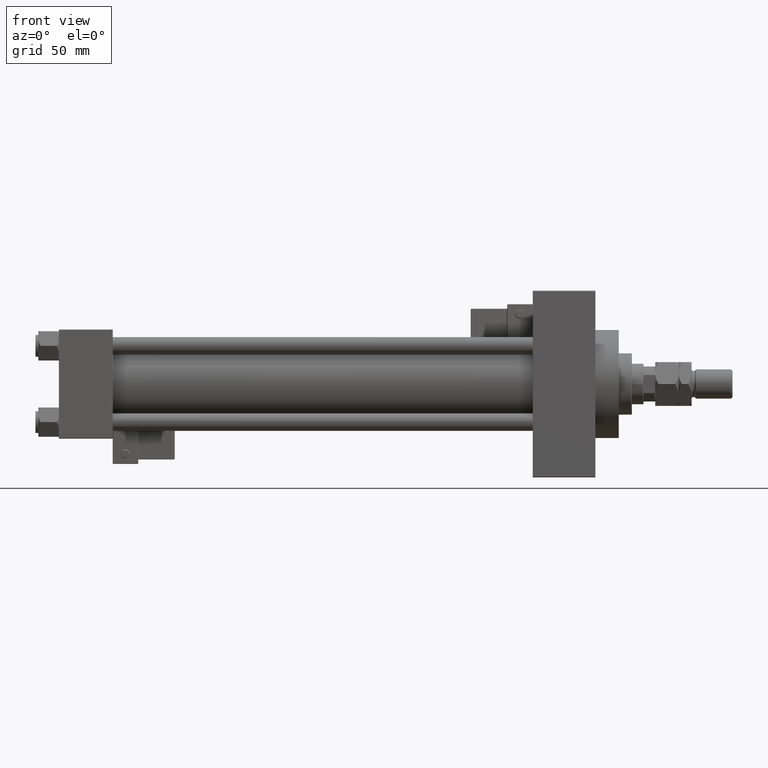
[diagram: clean part render]
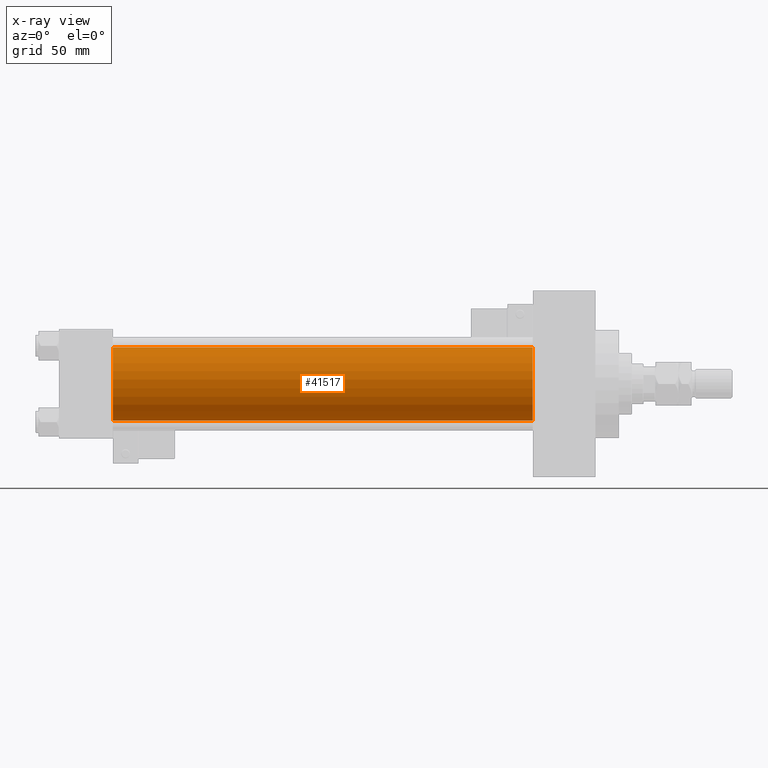
[diagram: x-ray — body ghosted, one internal face saturated and labeled with its STEP entity id]
A machine part, front view, then the same camera in x-ray: the body is ghosted and one INTERNAL B-rep face — a face not visible from any outside direction — is saturated and labeled: STEP entity #41517.
In plain terms, the highlighted cylindrical surface (edge-blend (fillet) strip) has radius 25 mm, axis along (-1, -0, -0).
Its self-contained STEP definition (entity closure, byte-faithful):
#2439 = DIRECTION ( 'NONE',  ( 1.000000000000000000, 0.000000000000000000, 0.000000000000000000 ) ) ;
#2708 = CARTESIAN_POINT ( 'NONE',  ( 37.00000000000000000, -2.602085213965210642E-15, 0.000000000000000000 ) ) ;
#3011 = ORIENTED_EDGE ( 'NONE', *, *, #22082, .F. ) ;
#3514 = AXIS2_PLACEMENT_3D ( 'NONE', #34918, #43232, #35966 ) ;
#5256 = CIRCLE ( 'NONE', #3514, 25.00000000000000000 ) ;
#7277 = CARTESIAN_POINT ( 'NONE',  ( 37.00000000000000000, 4.595317839031724996E-16, -25.00000000000000000 ) ) ;
#7745 = FACE_OUTER_BOUND ( 'NONE', #41945, .T. ) ;
#10598 = VECTOR ( 'NONE', #13436, 1000.000000000000000 ) ;
#11924 = CARTESIAN_POINT ( 'NONE',  ( 324.9999999999999432, 4.595317839031724996E-16, -25.00000000000000000 ) ) ;
#12291 = AXIS2_PLACEMENT_3D ( 'NONE', #2708, #2439, #23629 ) ;
#12650 = VERTEX_POINT ( 'NONE', #12829 ) ;
#12829 = CARTESIAN_POINT ( 'NONE',  ( 37.00000000000000000, -2.602085213965210642E-15, 25.00000000000000000 ) ) ;
#13005 = ORIENTED_EDGE ( 'NONE', *, *, #22814, .T. ) ;
#13436 = DIRECTION ( 'NONE',  ( -1.000000000000000000, -0.000000000000000000, -0.000000000000000000 ) ) ;
#16556 = ORIENTED_EDGE ( 'NONE', *, *, #38289, .T. ) ;
#16852 = CYLINDRICAL_SURFACE ( 'NONE', #23267, 25.00000000000000000 ) ;
#19505 = VECTOR ( 'NONE', #34673, 1000.000000000000000 ) ;
#19994 = CIRCLE ( 'NONE', #12291, 25.00000000000000000 ) ;
#21747 = LINE ( 'NONE', #23274, #10598 ) ;
#22082 = EDGE_CURVE ( 'NONE', #12650, #22137, #19994, .T. ) ;
#22137 = VERTEX_POINT ( 'NONE', #7277 ) ;
#22814 = EDGE_CURVE ( 'NONE', #45264, #22137, #21747, .T. ) ;
#23267 = AXIS2_PLACEMENT_3D ( 'NONE', #24885, #45023, #40989 ) ;
#23274 = CARTESIAN_POINT ( 'NONE',  ( 324.9999999999999432, 4.595317839031724996E-16, -25.00000000000000000 ) ) ;
#23629 = DIRECTION ( 'NONE',  ( 0.000000000000000000, 0.000000000000000000, -1.000000000000000000 ) ) ;
#24885 = CARTESIAN_POINT ( 'NONE',  ( 324.9999999999999432, -2.602085213965210642E-15, 0.000000000000000000 ) ) ;
#25957 = EDGE_CURVE ( 'NONE', #32729, #12650, #33861, .T. ) ;
#26910 = ORIENTED_EDGE ( 'NONE', *, *, #25957, .F. ) ;
#29012 = CARTESIAN_POINT ( 'NONE',  ( 324.9999999999999432, -2.602085213965210642E-15, 25.00000000000000000 ) ) ;
#32729 = VERTEX_POINT ( 'NONE', #29012 ) ;
#33861 = LINE ( 'NONE', #50789, #19505 ) ;
#34673 = DIRECTION ( 'NONE',  ( -1.000000000000000000, -0.000000000000000000, -0.000000000000000000 ) ) ;
#34918 = CARTESIAN_POINT ( 'NONE',  ( 324.9999999999999432, -2.602085213965210642E-15, 0.000000000000000000 ) ) ;
#35966 = DIRECTION ( 'NONE',  ( 0.000000000000000000, 0.000000000000000000, -1.000000000000000000 ) ) ;
#38289 = EDGE_CURVE ( 'NONE', #32729, #45264, #5256, .T. ) ;
#40989 = DIRECTION ( 'NONE',  ( 0.000000000000000000, 0.000000000000000000, 1.000000000000000000 ) ) ;
#41517 = ADVANCED_FACE ( 'NONE', ( #7745 ), #16852, .F. ) ;
#41945 = EDGE_LOOP ( 'NONE', ( #16556, #13005, #3011, #26910 ) ) ;
#43232 = DIRECTION ( 'NONE',  ( 1.000000000000000000, 0.000000000000000000, 0.000000000000000000 ) ) ;
#45023 = DIRECTION ( 'NONE',  ( -1.000000000000000000, -0.000000000000000000, -0.000000000000000000 ) ) ;
#45264 = VERTEX_POINT ( 'NONE', #11924 ) ;
#50789 = CARTESIAN_POINT ( 'NONE',  ( 324.9999999999999432, -2.602085213965210642E-15, 25.00000000000000000 ) ) ;